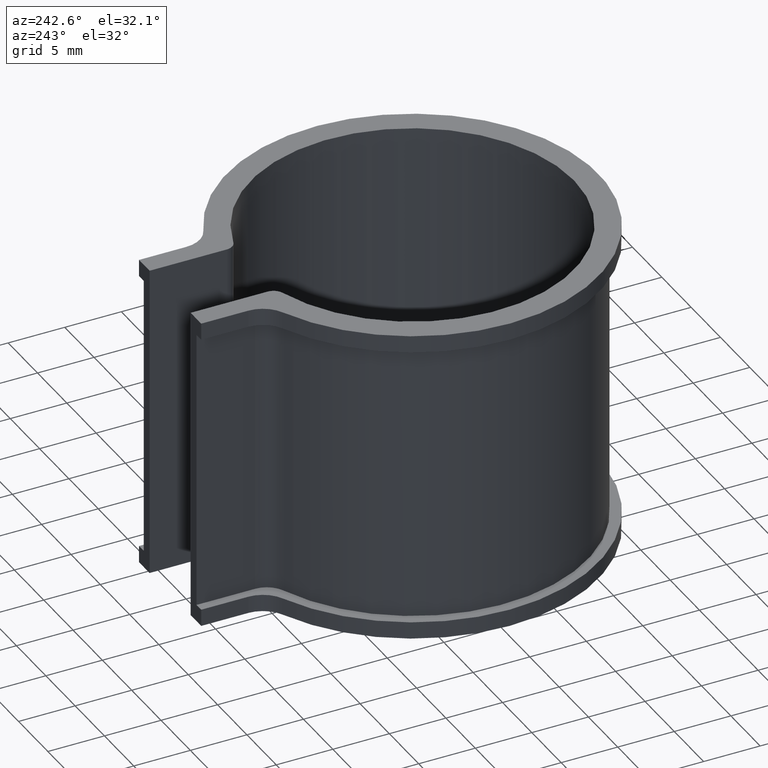
[diagram: clean part render]
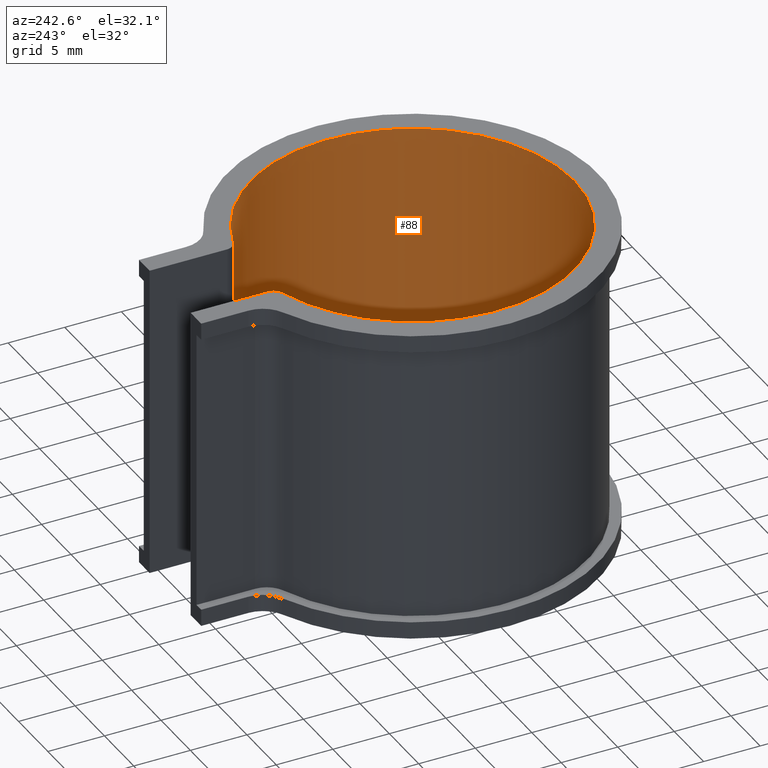
[diagram: same view with one face highlighted and labeled with its STEP entity id]
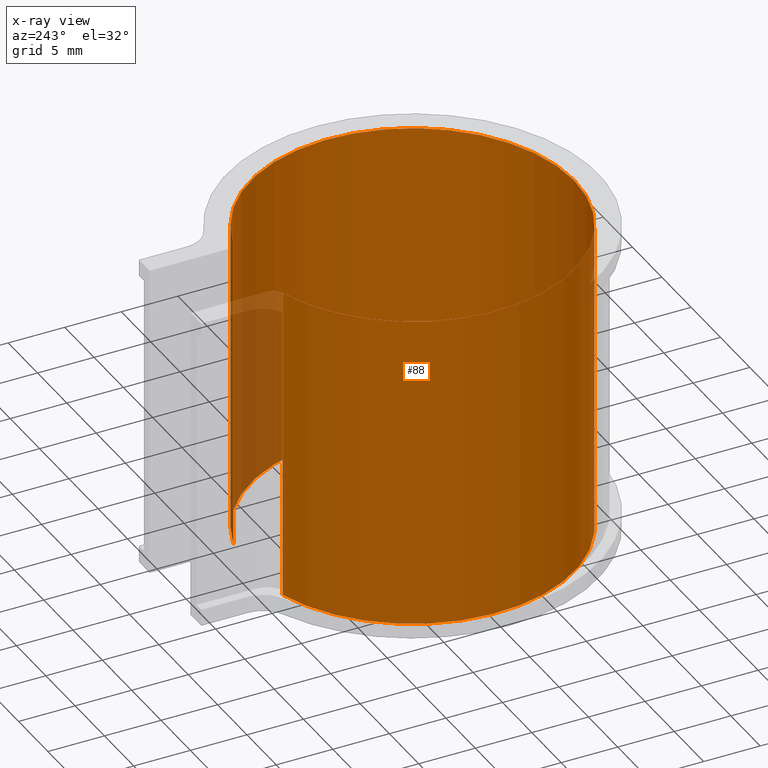
[diagram: x-ray of the same camera — body ghosted, the highlighted face saturated]
A machine part, auxiliary view. The second image highlights one B-rep face of the part: STEP entity #88.
The next image is the same camera in x-ray: the body ghosted, the highlighted face saturated — about 6% of this face is hidden behind the body in this view.
In plain terms, the highlighted cylindrical surface (partial cylindrical patch) has radius 14.29 mm, axis along (0, 0, -1).
Its self-contained STEP definition (entity closure, byte-faithful):
#88 = ADVANCED_FACE( '', ( #128 ), #129, .F. );
#128 = FACE_OUTER_BOUND( '', #180, .T. );
#129 = CYLINDRICAL_SURFACE( '', #181, 14.2900000000000 );
#180 = EDGE_LOOP( '', ( #337, #338, #339, #340 ) );
#181 = AXIS2_PLACEMENT_3D( '', #341, #342, #343 );
#337 = ORIENTED_EDGE( '', *, *, #486, .T. );
#338 = ORIENTED_EDGE( '', *, *, #491, .T. );
#339 = ORIENTED_EDGE( '', *, *, #467, .F. );
#340 = ORIENTED_EDGE( '', *, *, #483, .T. );
#341 = CARTESIAN_POINT( '', ( 0.000000000000000, 0.000000000000000, -25.0000000000000 ) );
#342 = DIRECTION( '', ( 0.000000000000000, 0.000000000000000, -1.00000000000000 ) );
#343 = DIRECTION( '', ( -0.244926522043387, -0.969541643664536, 0.000000000000000 ) );
#467 = EDGE_CURVE( '', #573, #574, #575, .T. );
#483 = EDGE_CURVE( '', #573, #596, #598, .F. );
#486 = EDGE_CURVE( '', #596, #601, #603, .T. );
#491 = EDGE_CURVE( '', #601, #574, #611, .T. );
#573 = VERTEX_POINT( '', #720 );
#574 = VERTEX_POINT( '', #721 );
#575 = CIRCLE( '', #722, 14.2900000000000 );
#596 = VERTEX_POINT( '', #752 );
#598 = LINE( '', #754, #755 );
#601 = VERTEX_POINT( '', #759 );
#603 = CIRCLE( '', #761, 14.2900000000000 );
#611 = LINE( '', #770, #771 );
#720 = CARTESIAN_POINT( '', ( 4.20568999345978, 13.6570960192463, 1.50000000000000 ) );
#721 = CARTESIAN_POINT( '', ( -4.20568999345977, 13.6570960192463, 1.50000000000000 ) );
#722 = AXIS2_PLACEMENT_3D( '', #851, #852, #853 );
#752 = CARTESIAN_POINT( '', ( 4.20568999345978, 13.6570960192463, -26.5000000000000 ) );
#754 = CARTESIAN_POINT( '', ( 4.20568999345978, 13.6570960192463, -25.0000000000000 ) );
#755 = VECTOR( '', #881, 1000.00000000000 );
#759 = CARTESIAN_POINT( '', ( -4.20568999345977, 13.6570960192463, -26.5000000000000 ) );
#761 = AXIS2_PLACEMENT_3D( '', #886, #887, #888 );
#770 = CARTESIAN_POINT( '', ( -4.20568999345978, 13.6570960192463, -25.0000000000000 ) );
#771 = VECTOR( '', #899, 1000.00000000000 );
#851 = CARTESIAN_POINT( '', ( 0.000000000000000, 0.000000000000000, 1.50000000000000 ) );
#852 = DIRECTION( '', ( 0.000000000000000, 0.000000000000000, -1.00000000000000 ) );
#853 = DIRECTION( '', ( 1.00000000000000, 0.000000000000000, 0.000000000000000 ) );
#881 = DIRECTION( '', ( 0.000000000000000, 0.000000000000000, 1.00000000000000 ) );
#886 = CARTESIAN_POINT( '', ( 0.000000000000000, 0.000000000000000, -26.5000000000000 ) );
#887 = DIRECTION( '', ( 0.000000000000000, 0.000000000000000, -1.00000000000000 ) );
#888 = DIRECTION( '', ( 1.00000000000000, 0.000000000000000, 0.000000000000000 ) );
#899 = DIRECTION( '', ( 0.000000000000000, 0.000000000000000, 1.00000000000000 ) );